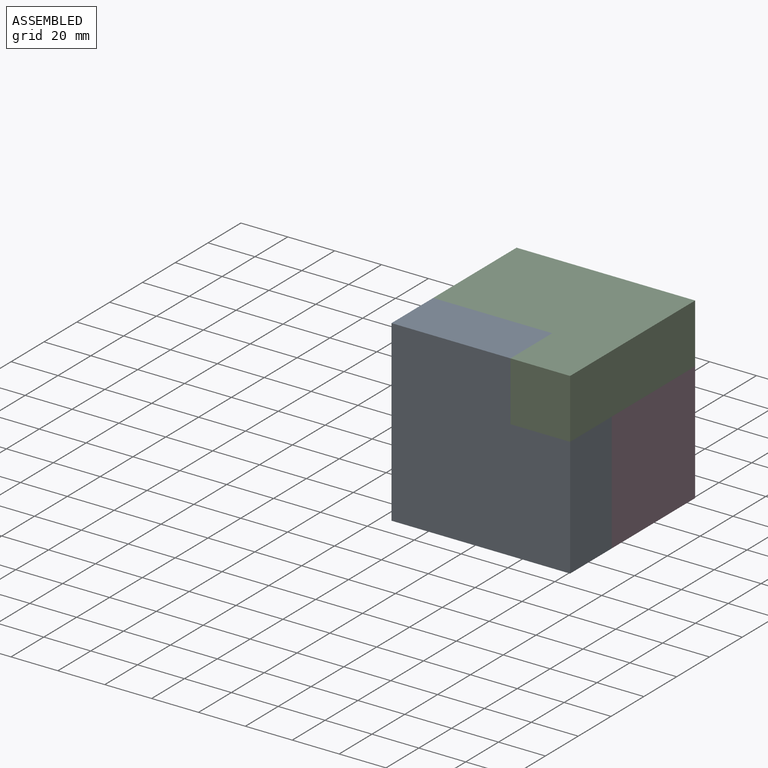
[diagram: assembled view]
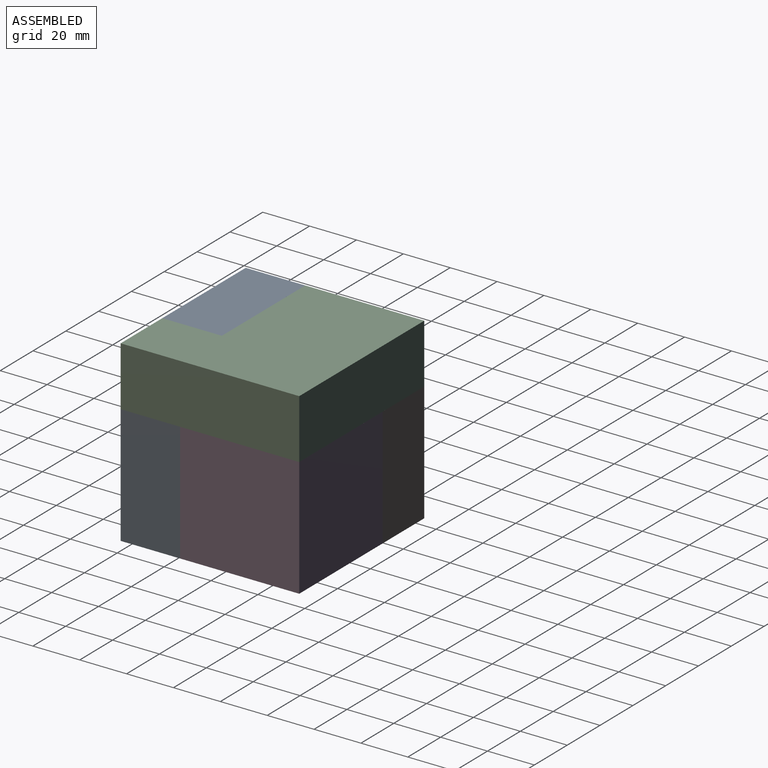
[diagram: assembled view, second angle]
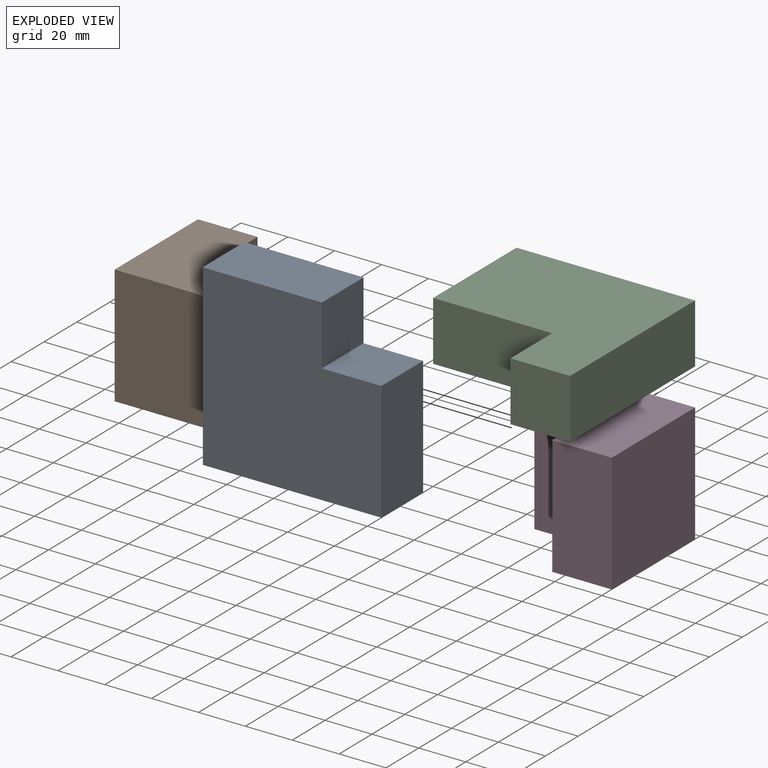
[diagram: exploded view]
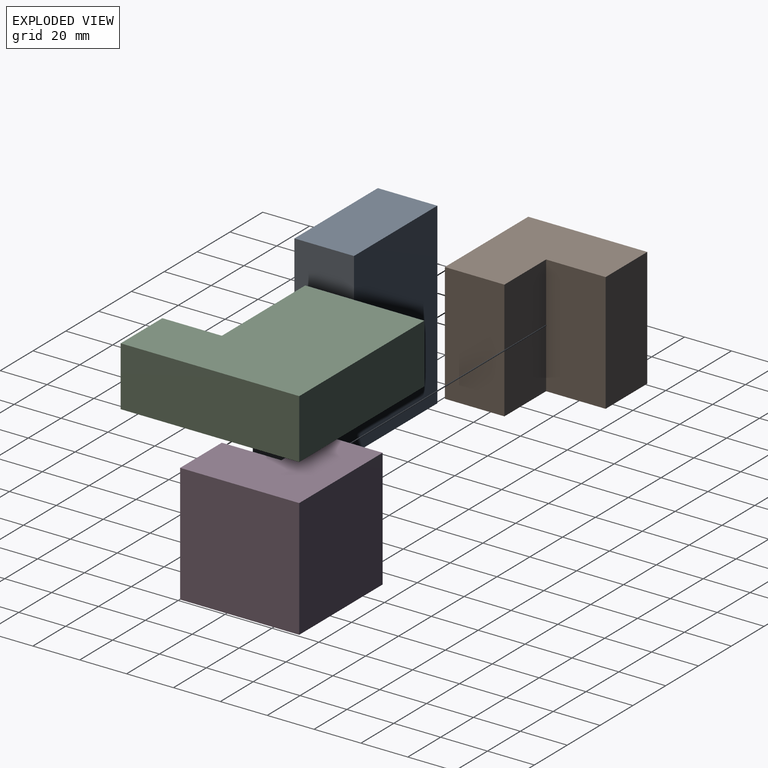
[diagram: exploded view, second angle]
ASSEMBLY  parts=4 mates=12
PART A: 8 faces, bbox 76.2x25.4x76.2 mm
  f0: plane 50.8x25.4mm, normal (0,0,-1), area 1290.3mm2, adj f1,f5,f6,f7
  f1: plane 25.4x25.4mm, normal (1,0,0), area 645.2mm2, adj f0,f2,f6,f7
  f2: plane 25.4x25.4mm, normal (0,0,-1), area 645.2mm2, adj f1,f3,f6,f7
  f3: plane 50.8x25.4mm, normal (1,0,0), area 1290.3mm2, adj f2,f4,f6,f7
  f4: plane 76.2x25.4mm, normal (0,0,1), area 1935.5mm2, adj f3,f5,f6,f7
  f5: plane 76.2x25.4mm, normal (-1,0,0), area 1935.5mm2, adj f0,f4,f6,f7
  f6: plane 76.2x76.2mm, normal (0,-1,0), area 5161.3mm2, adj f0,f1,f2,f3,f4,f5
  f7: plane 76.2x76.2mm, normal (0,1,0), area 5161.3mm2, adj f0,f1,f2,f3,f4,f5
PART B: 8 faces, bbox 50.8x50.8x50.8 mm
  f0: plane 50.8x25.4mm, normal (0,1,0), area 1290.3mm2, adj f1,f3,f4,f6
  f1: plane 50.8x50.8mm, normal (1,0,0), area 1935.5mm2, adj f0,f2,f4,f5,f6,f7
  f2: plane 50.8x50.8mm, normal (0,0,1), area 2580.6mm2, adj f1,f3,f5,f7
  f3: plane 50.8x50.8mm, normal (-1,0,0), area 1935.5mm2, adj f0,f2,f4,f5,f6,f7
  f4: plane 50.8x25.4mm, normal (0,0,-1), area 1290.3mm2, adj f0,f1,f3,f5
  f5: plane 50.8x50.8mm, normal (0,-1,0), area 2580.6mm2, adj f1,f2,f3,f4
  f6: plane 50.8x25.4mm, normal (0,0,-1), area 1290.3mm2, adj f0,f1,f3,f7
  f7: plane 50.8x25.4mm, normal (0,1,0), area 1290.3mm2, adj f1,f2,f3,f6
PART C: 8 faces, bbox 76.2x25.4x76.2 mm
  f0: plane 76.2x25.4mm, normal (0,0,-1), area 1935.5mm2, adj f1,f5,f6,f7
  f1: plane 76.2x25.4mm, normal (1,0,0), area 1935.5mm2, adj f0,f2,f6,f7
  f2: plane 50.8x25.4mm, normal (0,0,1), area 1290.3mm2, adj f1,f3,f6,f7
  f3: plane 50.8x25.4mm, normal (-1,0,0), area 1290.3mm2, adj f2,f4,f6,f7
  f4: plane 25.4x25.4mm, normal (0,0,1), area 645.2mm2, adj f3,f5,f6,f7
  f5: plane 25.4x25.4mm, normal (-1,0,0), area 645.2mm2, adj f0,f4,f6,f7
  f6: plane 76.2x76.2mm, normal (0,-1,0), area 4516.1mm2, adj f0,f1,f2,f3,f4,f5
  f7: plane 76.2x76.2mm, normal (0,1,0), area 4516.1mm2, adj f0,f1,f2,f3,f4,f5
PART D: 8 faces, bbox 50.8x50.8x50.8 mm
  f0: plane 50.8x50.8mm, normal (-1,0,0), area 1935.5mm2, adj f1,f3,f4,f5,f6,f7
  f1: plane 50.8x50.8mm, normal (0,0,-1), area 2580.6mm2, adj f0,f2,f4,f5
  f2: plane 50.8x50.8mm, normal (1,0,0), area 1935.5mm2, adj f1,f3,f4,f5,f6,f7
  f3: plane 50.8x25.4mm, normal (0,0,1), area 1290.3mm2, adj f0,f2,f4,f6
  f4: plane 50.8x25.4mm, normal (0,-1,0), area 1290.3mm2, adj f0,f1,f2,f3
  f5: plane 50.8x50.8mm, normal (0,1,0), area 2580.6mm2, adj f0,f1,f2,f7
  f6: plane 50.8x25.4mm, normal (0,-1,0), area 1290.3mm2, adj f0,f2,f3,f7
  f7: plane 50.8x25.4mm, normal (0,0,1), area 1290.3mm2, adj f0,f2,f5,f6
PLACE A rot(axis=(0,-1,0),90deg) t=(77.08,182.6,-233.12)mm
PLACE B rot(axis=(0,-1,0),90deg) t=(51.68,208,-207.72)mm
PLACE C rot(axis=(-0.58,-0.58,0.58),120deg) t=(102.48,182.6,-182.32)mm
PLACE D rot(axis=(0,-1,0),90deg) t=(102.48,233.4,-207.72)mm
MATE fastened C.f4 <-> A.f2  axis (-1,0,0) through (77.08,169.9,-169.62)mm
MATE planar B.f2 <-> C.f2  axis (-1,0,0) through (26.28,208,-207.72)mm
MATE planar D.f2 <-> C.f7  axis (0,0,1) through (81.31,212.23,-182.32)mm
MATE planar C.f5 <-> A.f6  axis (0,-1,0) through (89.78,157.2,-169.62)mm
MATE planar D.f5 <-> B.f7  axis (0,1,0) through (77.08,233.4,-207.72)mm
MATE planar B.f5 <-> D.f4  axis (0,-1,0) through (51.68,182.6,-207.72)mm
MATE planar C.f2 <-> A.f4  axis (-1,0,0) through (26.28,208,-169.62)mm
MATE planar B.f1 <-> D.f2  axis (0,0,1) through (47.45,203.77,-182.32)mm
MATE planar D.f5 <-> C.f1  axis (0,1,0) through (77.08,233.4,-207.72)mm
MATE planar D.f3 <-> B.f4  axis (-1,0,0) through (77.08,195.3,-207.72)mm
MATE planar D.f0 <-> B.f3  axis (0,0,-1) through (81.31,212.23,-233.12)mm
MATE planar A.f3 <-> C.f6  axis (0,0,1) through (51.68,182.6,-156.92)mm
